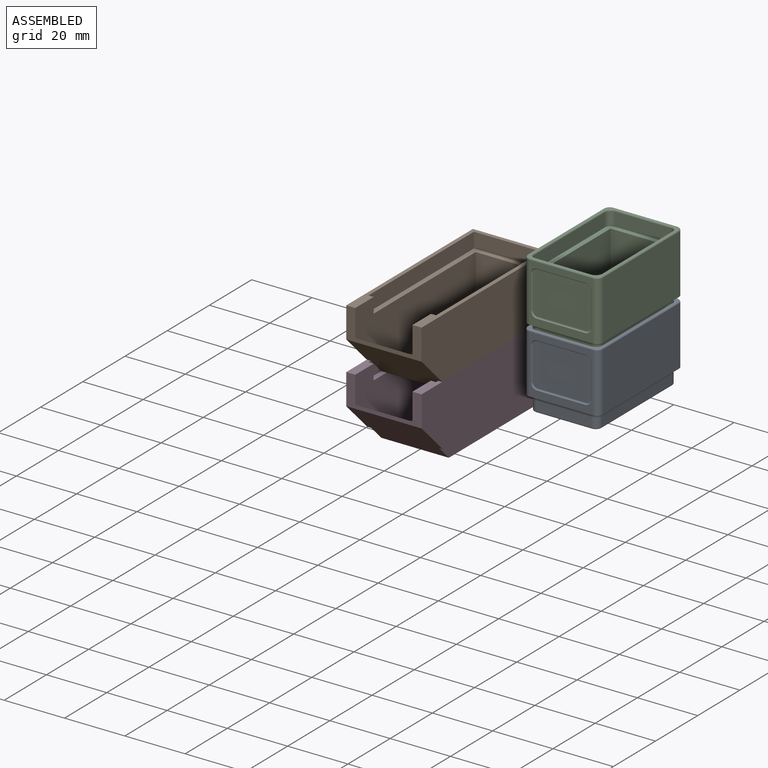
[diagram: assembled view]
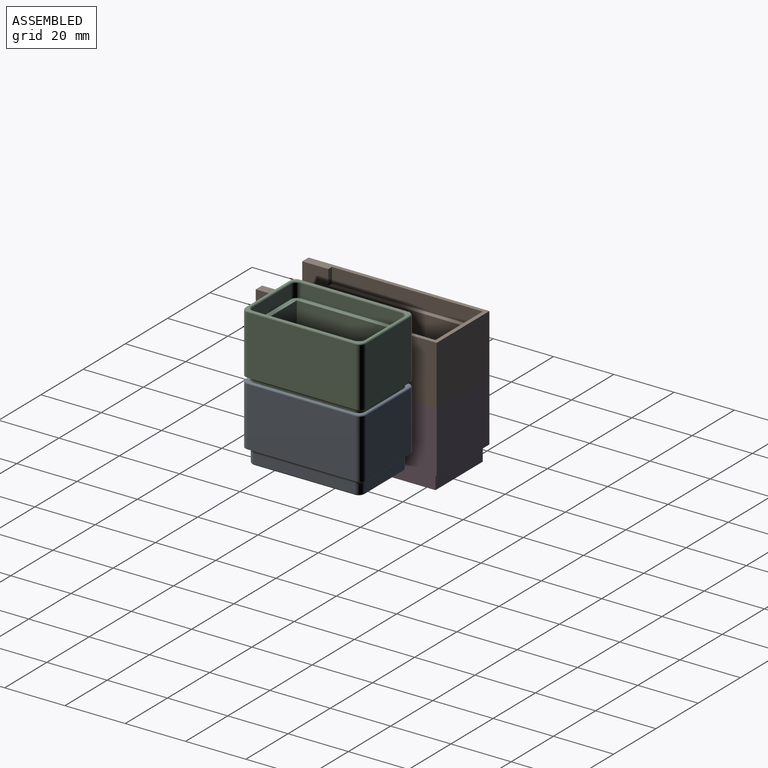
[diagram: assembled view, second angle]
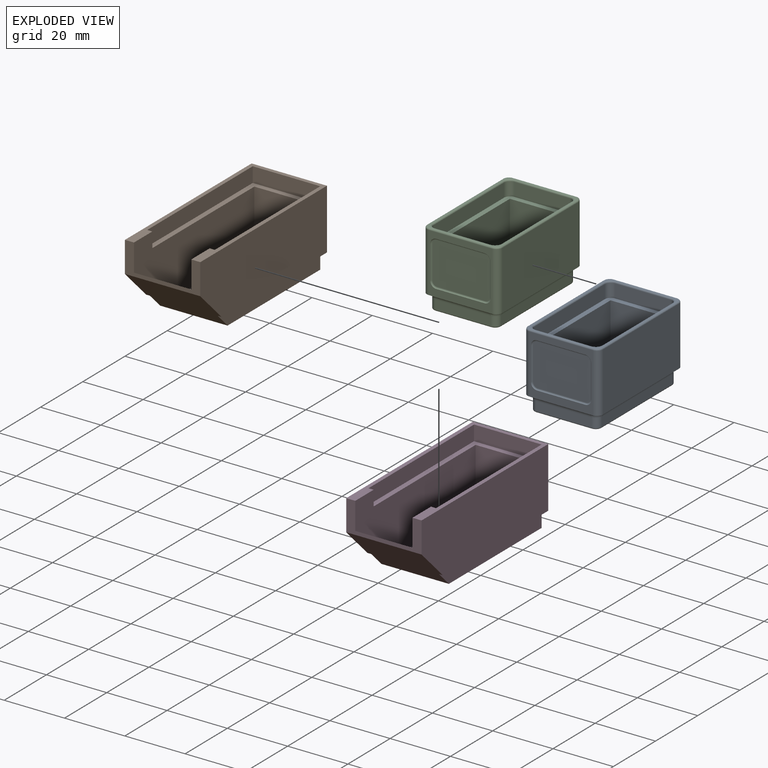
[diagram: exploded view]
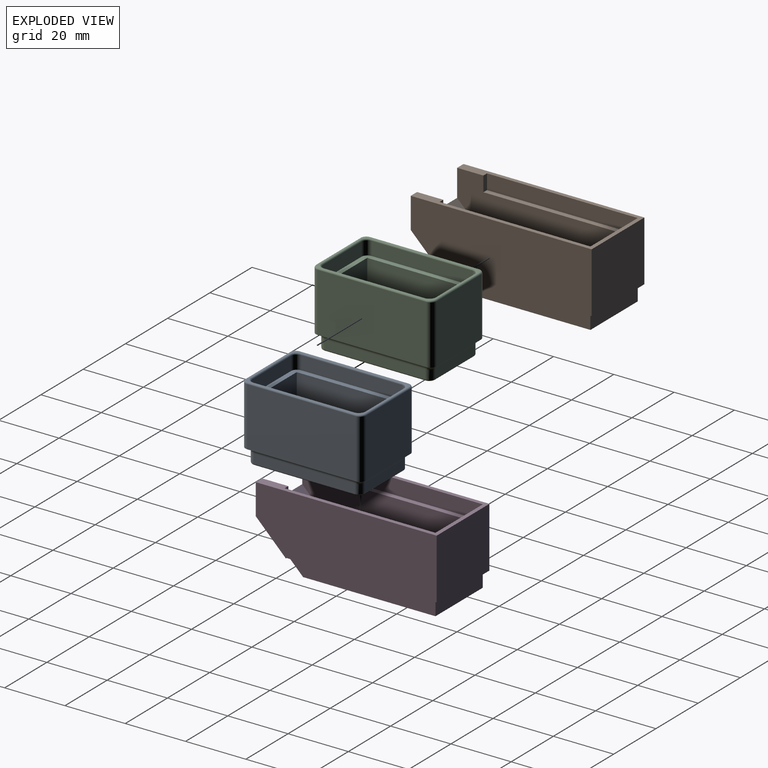
[diagram: exploded view, second angle]
ASSEMBLY  parts=4 mates=2
PART A: 85 faces, bbox 27.7x42.7x25 mm
  f0: plane 2.13x2.13mm, normal (0,0,-1), area 0.7mm2, adj f3,f6,f35,f49
  f1: plane 2.13x2.13mm, normal (0,0,-1), area 0.7mm2, adj f4,f6,f36,f41
  f2: plane 2.13x2.13mm, normal (0,0,-1), area 0.7mm2, adj f3,f7,f33,f48
  f3: plane 21.02x19.52mm, normal (0,-1,0), area 112.9mm2, adj f0,f2,f33,f35,f50,f51,f52,f53
  f4: plane 21.02x19.52mm, normal (0,1,0), area 409.5mm2, adj f1,f22,f34,f36,f37,f38,f39,f68
  f5: plane 39x24mm, normal (0,0,1), area 40.9mm2, adj f61,f62,f63,f64,f65,f66,f67,f68
  f6: plane 36.02x19.52mm, normal (1,0,0), area 702mm2, adj f0,f1,f35,f36,f43,f45,f47,f64
  f7: plane 36.02x19.52mm, normal (-1,0,0), area 702mm2, adj f2,f22,f33,f34,f42,f44,f46,f65
  f8: plane 18.4x4.5mm, normal (0,-1,0), area 82.8mm2, adj f12,f29,f32,f72
  f9: plane 33.4x4.5mm, normal (1,0,0), area 150.3mm2, adj f12,f29,f30,f69
  f10: plane 18.4x4.5mm, normal (0,1,0), area 82.8mm2, adj f12,f30,f31,f73
  f11: plane 33.4x4.5mm, normal (-1,0,0), area 150.3mm2, adj f12,f31,f32,f76
  f12: plane 37.4x22.4mm, normal (0,0,1), area 188.3mm2, adj f8,f9,f10,f11,f14,f15,f16,f17
  f13: plane 34x19mm, normal (0,0,1), area 646mm2, adj f14,f15,f16,f17
  f14: plane 34x18.8mm, normal (-1,0,0), area 639.2mm2, adj f12,f13,f15,f17
  f15: plane 19x18.8mm, normal (0,1,0), area 357.2mm2, adj f12,f13,f14,f16
  f16: plane 34x18.8mm, normal (1,0,0), area 639.2mm2, adj f12,f13,f15,f17
  f17: plane 19x18.8mm, normal (0,-1,0), area 357.2mm2, adj f12,f13,f14,f16
  f18: plane 18.4x3.01mm, normal (0,1,0), area 55.4mm2, adj f25,f28,f37,f81
  f19: plane 33.4x3.01mm, normal (-1,0,0), area 100.6mm2, adj f25,f26,f44,f77
  f20: plane 18.4x3.01mm, normal (0,-1,0), area 55.4mm2, adj f26,f27,f52,f80
  f21: plane 33.4x3.01mm, normal (1,0,0), area 100.6mm2, adj f27,f28,f45,f84
  f22: plane 2.13x2.13mm, normal (0,0,-1), area 0.7mm2, adj f4,f7,f34,f40
  f23: plane 36.4x21.4mm, normal (0,0,-1), area 777mm2, adj f77,f78,f79,f80,f81,f82,f83,f84
  f24: plane 19.02x14.02mm, normal (0,-1,0), area 264.7mm2, adj f53,f54,f55,f56,f57,f58,f59,f60
  f25: cylinder r=2mm len=3.01mm, axis (0,0,-1), area 9.4mm2, adj f18,f19,f38,f40,f42,f79
  f26: cylinder r=2mm len=3.01mm, axis (0,0,1), area 9.4mm2, adj f19,f20,f46,f48,f50,f78
  f27: cylinder r=2mm len=3.01mm, axis (0,0,-1), area 9.4mm2, adj f20,f21,f47,f49,f51,f82
  f28: cylinder r=2mm len=3.01mm, axis (0,0,1), area 9.4mm2, adj f18,f21,f39,f41,f43,f83
  f29: cylinder r=2mm len=4.5mm, axis (0,0,1), area 14.1mm2, adj f8,f9,f12,f70
  f30: cylinder r=2mm len=4.5mm, axis (0,0,-1), area 14.1mm2, adj f9,f10,f12,f71
  f31: cylinder r=2mm len=4.5mm, axis (0,0,1), area 14.1mm2, adj f10,f11,f12,f75
  f32: cylinder r=2mm len=4.5mm, axis (0,0,-1), area 14.1mm2, adj f8,f11,f12,f74
  f33: cylinder r=2mm len=19.5mm, axis (0,0,-1), area 61.3mm2, adj f2,f3,f7,f63
  f34: cylinder r=2mm len=19.5mm, axis (0,0,1), area 61.3mm2, adj f4,f7,f22,f67
  f35: cylinder r=2mm len=19.5mm, axis (0,0,1), area 61.3mm2, adj f0,f3,f6,f62
  f36: cylinder r=2mm len=19.5mm, axis (0,0,-1), area 61.3mm2, adj f1,f4,f6,f66
  f37: cylinder r=1.5mm len=18.4mm, axis (1,0,0), area 39.7mm2, adj f4,f18,f38,f39
  f38: bspline ~2x1.56mm, area 1.9mm2, adj f4,f25,f37,f40
  f39: bspline ~2x1.56mm, area 1.9mm2, adj f4,f28,f37,f41
  f40: torus R=3.5mm, axis (0,0,-1), area 5.3mm2, adj f22,f25,f38,f42
  f41: torus R=3.5mm, axis (0,0,-1), area 5.3mm2, adj f1,f28,f39,f43
  f42: bspline ~2x1.56mm, area 1.9mm2, adj f7,f25,f40,f44
  f43: bspline ~2x1.56mm, area 1.9mm2, adj f6,f28,f41,f45
  f44: cylinder r=1.5mm len=33.4mm, axis (0,-1,0), area 72mm2, adj f7,f19,f42,f46
  f45: cylinder r=1.5mm len=33.4mm, axis (0,-1,0), area 72mm2, adj f6,f21,f43,f47
  f46: bspline ~2x1.56mm, area 1.9mm2, adj f7,f26,f44,f48
  f47: bspline ~2x1.56mm, area 1.9mm2, adj f6,f27,f45,f49
  f48: torus R=3.5mm, axis (0,0,-1), area 5.3mm2, adj f2,f26,f46,f50
  f49: torus R=3.5mm, axis (0,0,-1), area 5.3mm2, adj f0,f27,f47,f51
  f50: bspline ~2x1.56mm, area 1.9mm2, adj f3,f26,f48,f52
  f51: bspline ~2x1.56mm, area 1.9mm2, adj f3,f27,f49,f52
  f52: cylinder r=1.5mm len=18.4mm, axis (1,0,0), area 39.7mm2, adj f3,f20,f50,f51
  f53: cylinder r=0.5mm len=16mm, axis (1,0,0), area 11mm2, adj f3,f24,f54,f55
  f54: torus R=1.51mm, axis (0,1,0), area 1.9mm2, adj f3,f24,f53,f56
  f55: torus R=1.51mm, axis (0,1,0), area 1.9mm2, adj f3,f24,f53,f57
  f56: cylinder r=0.5mm len=11mm, axis (0,0,-1), area 7.5mm2, adj f3,f24,f54,f58
  f57: cylinder r=0.5mm len=11mm, axis (0,0,-1), area 7.5mm2, adj f3,f24,f55,f59
  f58: torus R=1.51mm, axis (0,1,0), area 1.9mm2, adj f3,f24,f56,f60
  f59: torus R=1.51mm, axis (0,1,0), area 1.9mm2, adj f3,f24,f57,f60
  f60: cylinder r=0.5mm len=16mm, axis (1,0,0), area 11mm2, adj f3,f24,f58,f59
  f61: cylinder r=0.5mm len=21mm, axis (-1,0,0), area 16.5mm2, adj f3,f5,f62,f63
  f62: torus R=1.5mm, axis (0,0,-1), area 2.2mm2, adj f5,f35,f61,f64
  f63: torus R=1.5mm, axis (0,0,-1), area 2.2mm2, adj f5,f33,f61,f65
  f64: cylinder r=0.5mm len=36mm, axis (0,1,0), area 28.3mm2, adj f5,f6,f62,f66
  f65: cylinder r=0.5mm len=36mm, axis (0,-1,0), area 28.3mm2, adj f5,f7,f63,f67
  f66: torus R=1.5mm, axis (0,0,-1), area 2.2mm2, adj f5,f36,f64,f68
  f67: torus R=1.5mm, axis (0,0,-1), area 2.2mm2, adj f5,f34,f65,f68
  f68: cylinder r=0.5mm len=21mm, axis (1,0,0), area 16.5mm2, adj f4,f5,f66,f67
  f69: cylinder r=0.5mm len=33.4mm, axis (0,-1,0), area 26.2mm2, adj f5,f9,f70,f71
  f70: torus R=2.5mm, axis (0,0,-1), area 2.7mm2, adj f5,f29,f69,f72
  f71: torus R=2.5mm, axis (0,0,-1), area 2.7mm2, adj f5,f30,f69,f73
  f72: cylinder r=0.5mm len=18.4mm, axis (-1,0,0), area 14.5mm2, adj f5,f8,f70,f74
  f73: cylinder r=0.5mm len=18.4mm, axis (1,0,0), area 14.5mm2, adj f5,f10,f71,f75
  f74: torus R=2.5mm, axis (0,0,-1), area 2.7mm2, adj f5,f32,f72,f76
  f75: torus R=2.5mm, axis (0,0,-1), area 2.7mm2, adj f5,f31,f73,f76
  f76: cylinder r=0.5mm len=33.4mm, axis (0,1,0), area 26.2mm2, adj f5,f11,f74,f75
  f77: cylinder r=0.5mm len=33.4mm, axis (0,1,0), area 26.2mm2, adj f19,f23,f78,f79
  f78: torus R=1.5mm, axis (0,0,-1), area 2.2mm2, adj f23,f26,f77,f80
  f79: torus R=1.5mm, axis (0,0,-1), area 2.2mm2, adj f23,f25,f77,f81
  f80: cylinder r=0.5mm len=18.4mm, axis (-1,0,0), area 14.5mm2, adj f20,f23,f78,f82
  f81: cylinder r=0.5mm len=18.4mm, axis (1,0,0), area 14.5mm2, adj f18,f23,f79,f83
  f82: torus R=1.5mm, axis (0,0,-1), area 2.2mm2, adj f23,f27,f80,f84
  f83: torus R=1.5mm, axis (0,0,-1), area 2.2mm2, adj f23,f28,f81,f84
  f84: cylinder r=0.5mm len=33.4mm, axis (0,-1,0), area 26.2mm2, adj f21,f23,f82,f83
PART B: 24 faces, bbox 25x60x25 mm
  f0: plane 25x20mm, normal (0,1,0), area 500mm2, adj f2,f3,f7,f23
  f1: plane 25x14.78mm, normal (0,-0.71,-0.71), area 505.1mm2, adj f2,f5,f6,f7,f18,f19,f20,f21
  f2: plane 60x20.22mm, normal (1,0,0), area 1152.2mm2, adj f0,f1,f3,f5,f20,f23
  f3: plane 60x25mm, normal (0,0,1), area 214.7mm2, adj f0,f2,f5,f7,f10,f11,f12,f13
  f4: plane 19x18.8mm, normal (0,-1,0), area 357.2mm2, adj f8,f10,f11,f17
  f5: plane 25x10.22mm, normal (0,-1,0), area 84.1mm2, adj f1,f2,f3,f7,f9,f10,f11
  f6: plane 43.92x22.4mm, normal (0,0,-1), area 983.7mm2, adj f1,f18,f19,f22
  f7: plane 60x20.22mm, normal (-1,0,0), area 1152.2mm2, adj f0,f1,f3,f5,f21,f23
  f8: plane 42.22x19mm, normal (0,0,1), area 802.1mm2, adj f4,f9,f10,f11
  f9: plane 19x14.78mm, normal (0,0.71,0.71), area 397.2mm2, adj f5,f8,f10,f11
  f10: plane 57x23.8mm, normal (-1,0,0), area 1005.8mm2, adj f3,f4,f5,f8,f9,f14,f17
  f11: plane 57x23.8mm, normal (1,0,0), area 1005.8mm2, adj f3,f4,f5,f8,f9,f12,f17
  f12: plane 5x1.7mm, normal (0,1,0), area 8.5mm2, adj f3,f11,f13,f17
  f13: plane 50x5mm, normal (1,0,0), area 250mm2, adj f3,f12,f16,f17
  f14: plane 5x1.7mm, normal (0,1,0), area 8.5mm2, adj f3,f10,f15,f17
  f15: plane 50x5mm, normal (-1,0,0), area 250mm2, adj f3,f14,f16,f17
  f16: plane 22.4x5mm, normal (0,-1,0), area 112mm2, adj f3,f13,f15,f17
  f17: plane 50x22.4mm, normal (0,0,1), area 202.3mm2, adj f4,f10,f11,f12,f13,f14,f15,f16
  f18: plane 48.7x5mm, normal (1,0,0), area 232.1mm2, adj f1,f6,f20,f22,f23
  f19: plane 48.7x5mm, normal (-1,0,0), area 232.1mm2, adj f1,f6,f21,f22,f23
  f20: plane 1.3x0.22mm, normal (0,1,0), area 0.3mm2, adj f1,f2,f18,f23
  f21: plane 1.3x0.22mm, normal (0,1,0), area 0.3mm2, adj f1,f7,f19,f23
  f22: plane 22.4x5mm, normal (0,1,0), area 112mm2, adj f6,f18,f19,f23
  f23: plane 50x25mm, normal (0,0,-1), area 159.1mm2, adj f0,f2,f7,f18,f19,f20,f21,f22
PART C: same geometry as A
PART D: same geometry as B
PLACE A t=(36.11,17.25,13.35)mm
PLACE B t=(-5.59,2.87,18.33)mm
PLACE C t=(36.11,17.25,34.85)mm
PLACE D t=(-5.59,2.87,-1.67)mm
MATE fastened B.f22 <-> D.f16  axis (0,1,0) through (-4.29,31.57,8.33)mm
MATE fastened A.f8 <-> C.f18  axis (0,-1,0) through (57.81,35.95,20.85)mm
